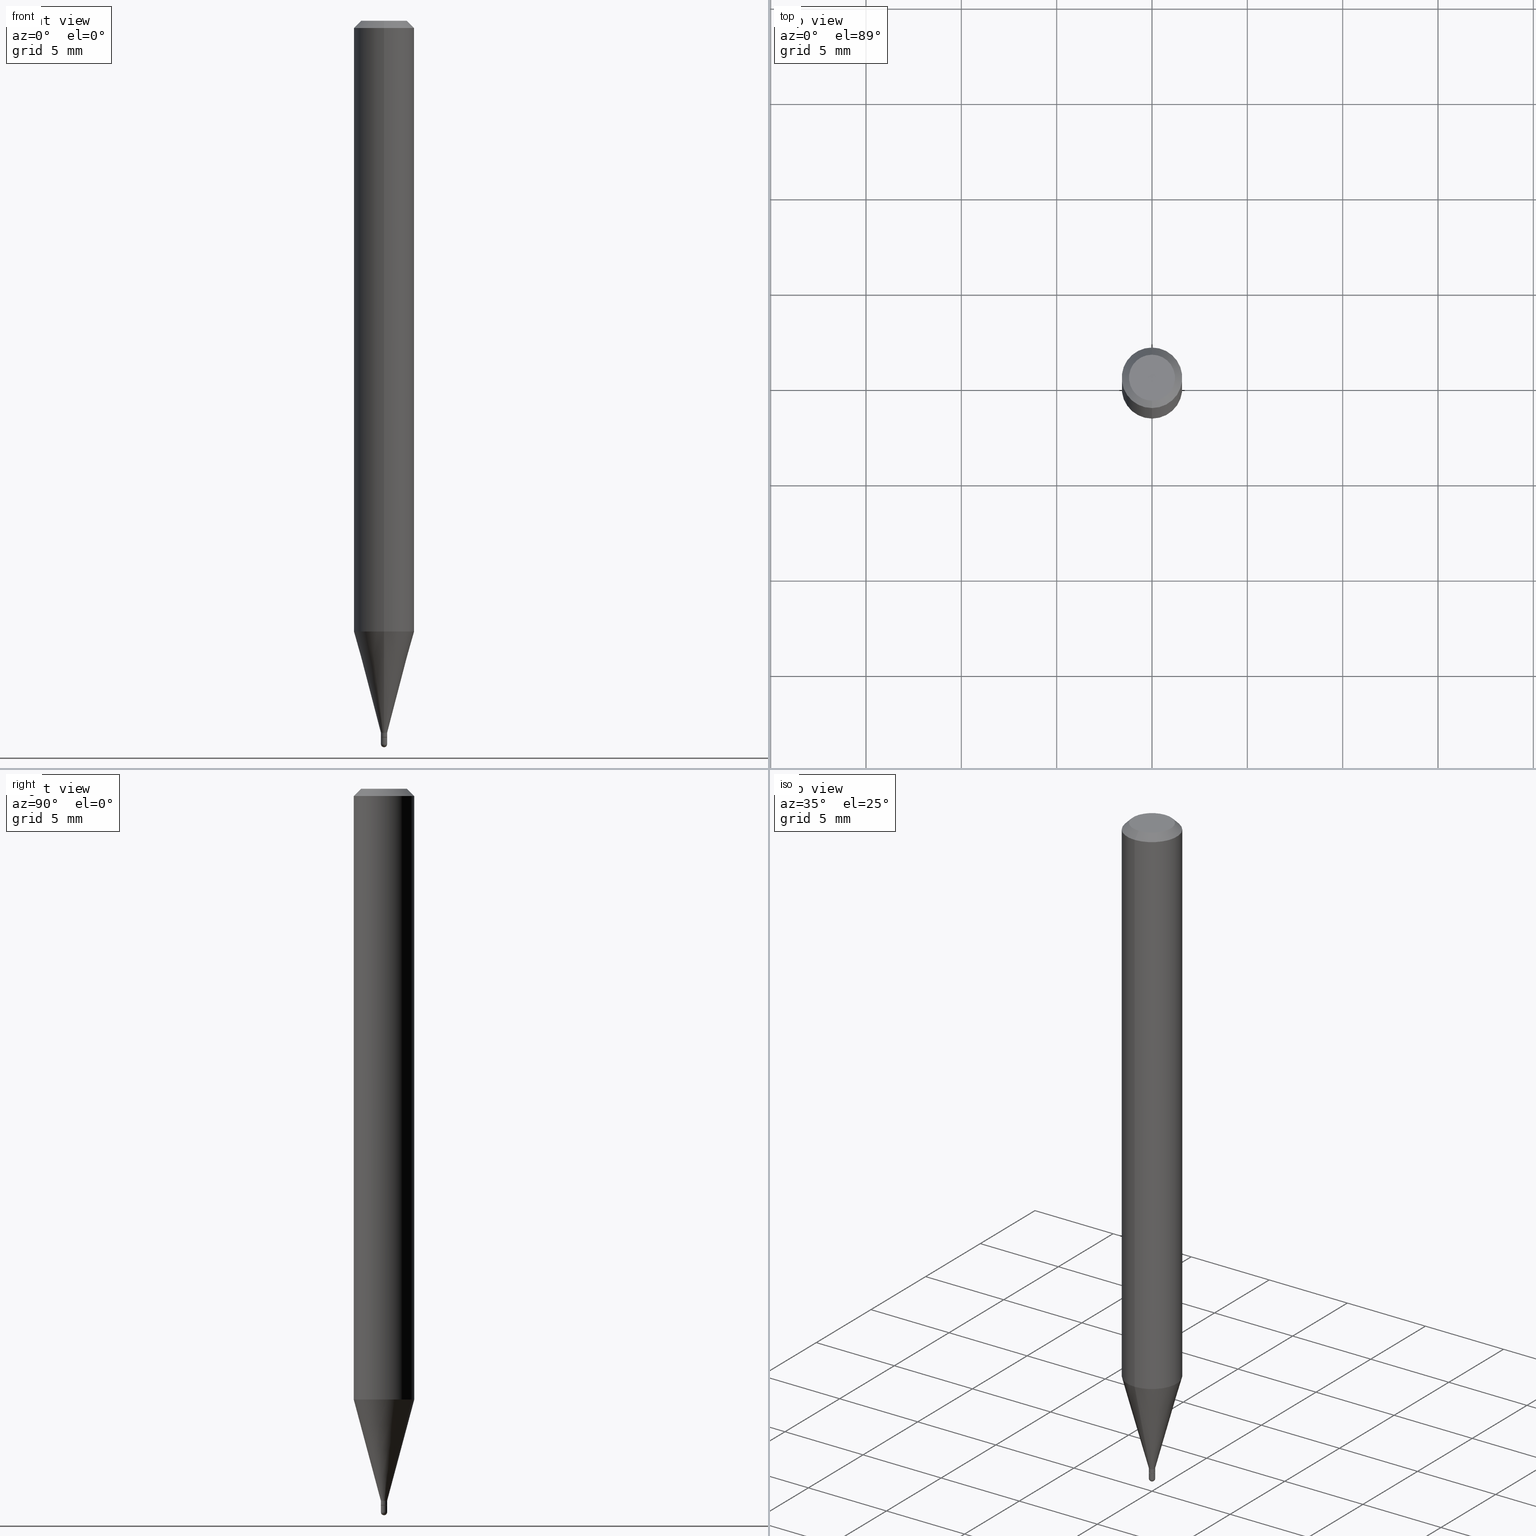
[diagram: canonical four-view strip — front | top / right | iso, engineering-drawing reading convention]
A machine part, canonical four-view strip (front | top / right | iso — engineering-drawing reading convention). The complete STEP part file that produces these views, byte-faithful:
ISO-10303-21;
HEADER;
FILE_DESCRIPTION (( 'STEP AP203' ),
    '1' );
FILE_NAME ('03037.STEP',
    '2024-03-08T18:02:21',
    ( '' ),
    ( '' ),
    'SwSTEP 2.0',
    'SolidWorks 2023',
    '' );
FILE_SCHEMA (( 'CONFIG_CONTROL_DESIGN' ));
ENDSEC;

DATA;
#1 = ORIENTED_EDGE ( 'NONE', *, *, #449, .T. ) ;
#2 = ORIENTED_EDGE ( 'NONE', *, *, #474, .T. ) ;
#3 = LINE ( 'NONE', #150, #250 ) ;
#4 = ORIENTED_EDGE ( 'NONE', *, *, #246, .T. ) ;
#5 = VECTOR ( 'NONE', #62, 39.37007874015748143 ) ;
#6 = CONICAL_SURFACE ( 'NONE', #165, 0.005999999999999998390, 0.7853981633974739252 ) ;
#7 = CARTESIAN_POINT ( 'NONE',  ( 0.006499999999999998834, -5.236349137930007031E-15, -1.493500000000000050 ) ) ;
#8 = ORIENTED_EDGE ( 'NONE', *, *, #246, .F. ) ;
#9 = VERTEX_POINT ( 'NONE', #400 ) ;
#10 = CARTESIAN_POINT ( 'NONE',  ( 4.618527782440596146E-17, 0.006499999999999923374, -2.269465356005107832E-17 ) ) ;
#11 = VERTEX_POINT ( 'NONE', #458 ) ;
#12 = ADVANCED_FACE ( 'NONE', ( #129 ), #254, .T. ) ;
#13 = PERSON_AND_ORGANIZATION_ROLE ( 'design_owner' ) ;
#14 = DIRECTION ( 'NONE',  ( 1.000000000000000000, -6.982962677686258822E-15, 0.000000000000000000 ) ) ;
#15 = CIRCLE ( 'NONE', #508, 0.005999999999999998390 ) ;
#16 = DIRECTION ( 'NONE',  ( 6.982962677686265922E-15, 1.000000000000000000, -3.483106191921935554E-15 ) ) ;
#17 = DIRECTION ( 'NONE',  ( -2.445466135731446828E-29, 3.491485163084822372E-15, 1.000000000000000000 ) ) ;
#18 = DIRECTION ( 'NONE',  ( -6.982962677686265922E-15, -1.000000000000000000, 3.483106191921935554E-15 ) ) ;
#19 = ORIENTED_EDGE ( 'NONE', *, *, #323, .F. ) ;
#20 = ORIENTED_EDGE ( 'NONE', *, *, #365, .F. ) ;
#21 = EDGE_CURVE ( 'NONE', #227, #159, #56, .T. ) ;
#22 = DIRECTION ( 'NONE',  ( -2.445466135731446828E-29, 3.491485163084822372E-15, 1.000000000000000000 ) ) ;
#23 = ADVANCED_BREP_SHAPE_REPRESENTATION ( '03037', ( #401, #223, #174 ), #154 ) ;
#24 = ADVANCED_FACE ( 'NONE', ( #325 ), #171, .T. ) ;
#25 = APPROVAL_DATE_TIME ( #276, #103 ) ;
#26 = AXIS2_PLACEMENT_3D ( 'NONE', #326, #281, #255 ) ;
#27 = DIRECTION ( 'NONE',  ( -6.982962677686266711E-15, -1.000000000000000000, 0.000000000000000000 ) ) ;
#28 = LOCAL_TIME ( 13, 2, 21.00000000000000000, #202 ) ;
#29 = FACE_OUTER_BOUND ( 'NONE', #195, .T. ) ;
#30 = CC_DESIGN_DATE_AND_TIME_ASSIGNMENT ( #316, #333, ( #85 ) ) ;
#31 = CARTESIAN_POINT ( 'NONE',  ( 3.652307662037501839E-29, -5.214527379562237841E-15, -1.493500000000000050 ) ) ;
#32 = ORIENTED_EDGE ( 'NONE', *, *, #371, .F. ) ;
#33 = LINE ( 'NONE', #380, #123 ) ;
#34 = AXIS2_PLACEMENT_3D ( 'NONE', #429, #50, #111 ) ;
#35 = EDGE_CURVE ( 'NONE', #351, #482, #55, .T. ) ;
#36 = APPROVAL_STATUS ( 'not_yet_approved' ) ;
#37 = DIRECTION ( 'NONE',  ( -2.445466135731447109E-29, 3.491485163084821978E-15, 1.000000000000000000 ) ) ;
#38 = DIRECTION ( 'NONE',  ( -6.982962677686265133E-15, -1.000000000000000000, 0.000000000000000000 ) ) ;
#39 = DIRECTION ( 'NONE',  ( -6.982962677686265922E-15, -1.000000000000000000, 4.370956789862821150E-15 ) ) ;
#40 = ORIENTED_EDGE ( 'NONE', *, *, #442, .F. ) ;
#41 = ORIENTED_EDGE ( 'NONE', *, *, #442, .T. ) ;
#42 = AXIS2_PLACEMENT_3D ( 'NONE', #340, #143, #382 ) ;
#43 = AXIS2_PLACEMENT_3D ( 'NONE', #114, #313, #310 ) ;
#44 = CARTESIAN_POINT ( 'NONE',  ( 3.651751803949534592E-29, -5.215323399981684118E-15, -1.493500000000000050 ) ) ;
#45 = DIRECTION ( 'NONE',  ( 1.000000000000000000, -6.982962677686267499E-15, 4.876176775795935793E-29 ) ) ;
#46 = ORIENTED_EDGE ( 'NONE', *, *, #432, .F. ) ;
#47 = VERTEX_POINT ( 'NONE', #58 ) ;
#48 = FACE_OUTER_BOUND ( 'NONE', #79, .T. ) ;
#49 = APPROVAL_DATE_TIME ( #156, #398 ) ;
#50 = DIRECTION ( 'NONE',  ( -2.445466135731446828E-29, 3.491485163084822372E-15, 1.000000000000000000 ) ) ;
#51 = VERTEX_POINT ( 'NONE', #317 ) ;
#52 = ORIENTED_EDGE ( 'NONE', *, *, #35, .T. ) ;
#53 = EDGE_CURVE ( 'NONE', #440, #47, #484, .T. ) ;
#54 = ADVANCED_FACE ( 'NONE', ( #125 ), #91, .T. ) ;
#55 = LINE ( 'NONE', #411, #5 ) ;
#56 = CIRCLE ( 'NONE', #278, 0.06250000000000000000 ) ;
#57 = CALENDAR_DATE ( 2024, 8, 3 ) ;
#58 = CARTESIAN_POINT ( 'NONE',  ( -4.538925740492416104E-17, -0.006500000000005109330, -1.479500000000000259 ) ) ;
#59 = FACE_OUTER_BOUND ( 'NONE', #445, .T. ) ;
#60 = ORIENTED_EDGE ( 'NONE', *, *, #168, .T. ) ;
#61 = DIRECTION ( 'NONE',  ( -2.445466135731446828E-29, 3.491485163084822372E-15, 1.000000000000000000 ) ) ;
#62 = DIRECTION ( 'NONE',  ( -2.445468806185136877E-29, 3.491481338843145188E-15, 1.000000000000000000 ) ) ;
#63 = APPROVAL_DATE_TIME ( #300, #235 ) ;
#64 = AXIS2_PLACEMENT_3D ( 'NONE', #106, #110, #38 ) ;
#65 = LINE ( 'NONE', #342, #179 ) ;
#66 = CALENDAR_DATE ( 2024, 8, 3 ) ;
#67 = DIRECTION ( 'NONE',  ( 5.024295867788190974E-15, 0.7071067811865681119, 0.7071067811865270336 ) ) ;
#68 = CARTESIAN_POINT ( 'NONE',  ( -0.006499999999999998834, 4.618527782440650380E-17, -3.197307808665688464E-31 ) ) ;
#69 = EDGE_LOOP ( 'NONE', ( #436, #390 ) ) ;
#70 = DIRECTION ( 'NONE',  ( -6.982962677686265133E-15, -1.000000000000000000, 0.000000000000000000 ) ) ;
#71 = VECTOR ( 'NONE', #221, 39.37007874015749564 ) ;
#72 = ORIENTED_EDGE ( 'NONE', *, *, #341, .T. ) ;
#73 = PERSON_AND_ORGANIZATION_ROLE ( 'creator' ) ;
#74 = DIRECTION ( 'NONE',  ( -6.982962677686266711E-15, -1.000000000000000000, 3.491485163084823161E-15 ) ) ;
#75 = SHAPE_DEFINITION_REPRESENTATION ( #160, #23 ) ;
#76 = DIRECTION ( 'NONE',  ( -2.445466135731447109E-29, 3.491485163084821978E-15, 1.000000000000000000 ) ) ;
#77 = DIRECTION ( 'NONE',  ( -4.851104656540964275E-15, -0.7071067811865500152, -0.7071067811865450192 ) ) ;
#78 = EDGE_LOOP ( 'NONE', ( #20, #315, #60, #194 ) ) ;
#79 = EDGE_LOOP ( 'NONE', ( #8, #2, #397, #52, #384 ) ) ;
#80 = LINE ( 'NONE', #239, #386 ) ;
#81 = EDGE_LOOP ( 'NONE', ( #189, #192, #41, #177 ) ) ;
#82 = PLANE ( 'NONE',  #344 ) ;
#83 = VERTEX_POINT ( 'NONE', #133 ) ;
#84 = CARTESIAN_POINT ( 'NONE',  ( -3.773273898774340269E-16, -0.04749999999999999362, 4.053343695858956261E-16 ) ) ;
#85 = PRODUCT_DEFINITION ( 'UNKNOWN', '', #257, #501 ) ;
#86 = CIRCLE ( 'NONE', #163, 0.005999999999999998390 ) ;
#87 = ADVANCED_FACE ( 'NONE', ( #357 ), #453, .F. ) ;
#88 = DIRECTION ( 'NONE',  ( -2.445468806185136597E-29, 3.491481338843145583E-15, 1.000000000000000000 ) ) ;
#89 = DIRECTION ( 'NONE',  ( 1.000000000000000000, 0.000000000000000000, 0.000000000000000000 ) ) ;
#90 = DIRECTION ( 'NONE',  ( -6.982962677686265133E-15, -1.000000000000000000, 0.000000000000000000 ) ) ;
#91 = CONICAL_SURFACE ( 'NONE', #241, 0.005999999999999998390, 0.7853981633974739252 ) ;
#92 = ORIENTED_EDGE ( 'NONE', *, *, #489, .F. ) ;
#93 = FACE_OUTER_BOUND ( 'NONE', #81, .T. ) ;
#94 = CARTESIAN_POINT ( 'NONE',  ( 3.619289880882541127E-29, -5.167398041365536243E-15, -1.479999999999999982 ) ) ;
#95 = ADVANCED_FACE ( 'NONE', ( #127 ), #215, .T. ) ;
#96 = SECURITY_CLASSIFICATION_LEVEL ( 'unclassified' ) ;
#97 = DIRECTION ( 'NONE',  ( -2.445466135731446828E-29, 3.491485163084822372E-15, 1.000000000000000000 ) ) ;
#98 = CIRCLE ( 'NONE', #164, 0.006499999999999922506 ) ;
#99 = CARTESIAN_POINT ( 'NONE',  ( -4.364351673553608545E-16, -0.06250000000000439926, -1.261005154776142723 ) ) ;
#100 = CC_DESIGN_APPROVAL ( #235, ( #257 ) ) ;
#101 = ADVANCED_FACE ( 'NONE', ( #493 ), #134, .T. ) ;
#102 = DIRECTION ( 'NONE',  ( -2.445466135731447109E-29, 3.491485163084821978E-15, 1.000000000000000000 ) ) ;
#103 = APPROVAL ( #253, 'UNSPECIFIED' ) ;
#104 = DIRECTION ( 'NONE',  ( -2.445466135731446828E-29, 3.491485163084822372E-15, 1.000000000000000000 ) ) ;
#105 = ORIENTED_EDGE ( 'NONE', *, *, #381, .F. ) ;
#106 = CARTESIAN_POINT ( 'NONE',  ( 3.618067147814676127E-29, -5.165652298783995580E-15, -1.479500000000000259 ) ) ;
#107 = EDGE_CURVE ( 'NONE', #279, #11, #311, .T. ) ;
#108 = VECTOR ( 'NONE', #478, 39.37007874015748143 ) ;
#109 = ORIENTED_EDGE ( 'NONE', *, *, #275, .F. ) ;
#110 = DIRECTION ( 'NONE',  ( -2.445466135731446828E-29, 3.491485163084822372E-15, 1.000000000000000000 ) ) ;
#111 = DIRECTION ( 'NONE',  ( -6.982962677686265922E-15, -1.000000000000000000, 3.483106191921935554E-15 ) ) ;
#112 = EDGE_CURVE ( 'NONE', #393, #227, #301, .T. ) ;
#113 = CALENDAR_DATE ( 2024, 8, 3 ) ;
#114 = CARTESIAN_POINT ( 'NONE',  ( 3.651751803949534592E-29, -5.215323399981684118E-15, -1.493500000000000050 ) ) ;
#115 = CIRCLE ( 'NONE', #64, 0.006499999999999923374 ) ;
#116 = ORIENTED_EDGE ( 'NONE', *, *, #275, .T. ) ;
#117 = CC_DESIGN_SECURITY_CLASSIFICATION ( #387, ( #257 ) ) ;
#118 = DIRECTION ( 'NONE',  ( -6.982962677686265922E-15, -1.000000000000000000, 3.491485163084821978E-15 ) ) ;
#119 = FACE_OUTER_BOUND ( 'NONE', #308, .T. ) ;
#120 = ORIENTED_EDGE ( 'NONE', *, *, #335, .F. ) ;
#121 = CARTESIAN_POINT ( 'NONE',  ( 3.840629472727447874E-16, 0.04749999999999999362, 7.364327909283752044E-17 ) ) ;
#122 = EDGE_LOOP ( 'NONE', ( #32, #448, #46, #211 ) ) ;
#123 = VECTOR ( 'NONE', #37, 39.37007874015748143 ) ;
#124 = AXIS2_PLACEMENT_3D ( 'NONE', #128, #88, #161 ) ;
#125 = FACE_OUTER_BOUND ( 'NONE', #451, .T. ) ;
#126 = EDGE_CURVE ( 'NONE', #348, #393, #98, .T. ) ;
#127 = FACE_OUTER_BOUND ( 'NONE', #122, .T. ) ;
#128 = CARTESIAN_POINT ( 'NONE',  ( 3.652307662037501839E-29, -5.214527379562237841E-15, -1.493500000000000050 ) ) ;
#129 = FACE_OUTER_BOUND ( 'NONE', #404, .T. ) ;
#130 = CONICAL_SURFACE ( 'NONE', #144, 0.06250000000000000000, 0.7853981633974483900 ) ;
#131 = EDGE_CURVE ( 'NONE', #234, #9, #86, .T. ) ;
#132 = PERSON_AND_ORGANIZATION ( #410, #405 ) ;
#133 = CARTESIAN_POINT ( 'NONE',  ( 4.440892098500935790E-16, 0.06249999999999995143, -0.01499999999999997863 ) ) ;
#134 = CYLINDRICAL_SURFACE ( 'NONE', #302, 0.06250000000000000000 ) ;
#135 = DIRECTION ( 'NONE',  ( -2.445468806185136877E-29, 3.491481338843145188E-15, 1.000000000000000000 ) ) ;
#136 = ADVANCED_FACE ( 'NONE', ( #176 ), #130, .T. ) ;
#137 = PERSON_AND_ORGANIZATION ( #410, #405 ) ;
#138 = CARTESIAN_POINT ( 'NONE',  ( 0.000000000000000000, 0.000000000000000000, 0.000000000000000000 ) ) ;
#139 = PRODUCT_RELATED_PRODUCT_CATEGORY ( 'detail', '', ( #406 ) ) ;
#140 = CARTESIAN_POINT ( 'NONE',  ( 4.440892098500932831E-16, 0.06249999999999557992, -1.261005154776143389 ) ) ;
#141 = FACE_OUTER_BOUND ( 'NONE', #78, .T. ) ;
#142 = ORIENTED_EDGE ( 'NONE', *, *, #35, .F. ) ;
#143 = DIRECTION ( 'NONE',  ( -2.445466135731446828E-29, 3.491485163084822372E-15, 1.000000000000000000 ) ) ;
#144 = AXIS2_PLACEMENT_3D ( 'NONE', #506, #422, #218 ) ;
#145 = APPROVAL_PERSON_ORGANIZATION ( #137, #398, #267 ) ;
#146 = DIRECTION ( 'NONE',  ( -2.445468806185136597E-29, 3.491481338843145583E-15, 1.000000000000000000 ) ) ;
#147 = ORIENTED_EDGE ( 'NONE', *, *, #112, .F. ) ;
#148 = DIRECTION ( 'NONE',  ( -2.445468806185136597E-29, 3.491481338843145583E-15, 1.000000000000000000 ) ) ;
#149 = ORIENTED_EDGE ( 'NONE', *, *, #328, .F. ) ;
#150 = CARTESIAN_POINT ( 'NONE',  ( 4.440892098500625669E-16, 0.06250000000000000000, -2.182178226928013983E-16 ) ) ;
#151 = ORIENTED_EDGE ( 'NONE', *, *, #449, .F. ) ;
#152 = AXIS2_PLACEMENT_3D ( 'NONE', #270, #354, #39 ) ;
#153 = ORIENTED_EDGE ( 'NONE', *, *, #191, .F. ) ;
#154 =( GEOMETRIC_REPRESENTATION_CONTEXT ( 3 ) GLOBAL_UNCERTAINTY_ASSIGNED_CONTEXT ( ( #379 ) ) GLOBAL_UNIT_ASSIGNED_CONTEXT ( ( #450, #321, #244 ) ) REPRESENTATION_CONTEXT ( 'NONE', 'WORKASPACE' ) );
#155 = EDGE_CURVE ( 'NONE', #234, #440, #418, .T. ) ;
#156 = DATE_AND_TIME ( #113, #463 ) ;
#157 = CARTESIAN_POINT ( 'NONE',  ( 3.619293833154002365E-29, -5.167392381487854879E-15, -1.479999999999999982 ) ) ;
#158 = CYLINDRICAL_SURFACE ( 'NONE', #503, 0.006499999999999998834 ) ;
#159 = VERTEX_POINT ( 'NONE', #140 ) ;
#160 = PRODUCT_DEFINITION_SHAPE ( 'NONE', 'NONE',  #85 ) ;
#161 = DIRECTION ( 'NONE',  ( 1.000000000000000000, -6.982962677686258822E-15, 0.000000000000000000 ) ) ;
#162 = ORIENTED_EDGE ( 'NONE', *, *, #261, .F. ) ;
#163 = AXIS2_PLACEMENT_3D ( 'NONE', #372, #460, #338 ) ;
#164 = AXIS2_PLACEMENT_3D ( 'NONE', #505, #104, #70 ) ;
#165 = AXIS2_PLACEMENT_3D ( 'NONE', #329, #361, #409 ) ;
#166 = CARTESIAN_POINT ( 'NONE',  ( 3.652307662037501839E-29, -5.214527379562237841E-15, -1.493500000000000050 ) ) ;
#167 = ORIENTED_EDGE ( 'NONE', *, *, #335, .T. ) ;
#168 = EDGE_CURVE ( 'NONE', #47, #393, #303, .T. ) ;
#169 = DIRECTION ( 'NONE',  ( 0.000000000000000000, 0.000000000000000000, 1.000000000000000000 ) ) ;
#170 = DIRECTION ( 'NONE',  ( -2.445466135731446828E-29, 3.491485163084822372E-15, 1.000000000000000000 ) ) ;
#171 = CONICAL_SURFACE ( 'NONE', #414, 0.006499999999999922506, 0.2617993877991501295 ) ;
#172 = EDGE_CURVE ( 'NONE', #51, #351, #368, .T. ) ;
#173 = DIRECTION ( 'NONE',  ( -2.445466135731447109E-29, 3.491485163084821978E-15, 1.000000000000000000 ) ) ;
#174 = AXIS2_PLACEMENT_3D ( 'NONE', #207, #169, #89 ) ;
#175 = CARTESIAN_POINT ( 'NONE',  ( 3.651751803949534592E-29, -5.215323399981684118E-15, -1.493500000000000050 ) ) ;
#176 = FACE_OUTER_BOUND ( 'NONE', #297, .T. ) ;
#177 = ORIENTED_EDGE ( 'NONE', *, *, #53, .F. ) ;
#178 = DIRECTION ( 'NONE',  ( 1.000000000000000000, -6.982962677686258822E-15, 0.000000000000000000 ) ) ;
#179 = VECTOR ( 'NONE', #370, 39.37007874015747433 ) ;
#180 = CIRCLE ( 'NONE', #43, 0.006499999999999890414 ) ;
#181 = DIRECTION ( 'NONE',  ( 1.000000000000000000, -6.982962677686258822E-15, 0.000000000000000000 ) ) ;
#182 = APPROVAL_ROLE ( '' ) ;
#183 = CARTESIAN_POINT ( 'NONE',  ( 3.619289880882541127E-29, -5.167398041365536243E-15, -1.479999999999999982 ) ) ;
#184 = EDGE_CURVE ( 'NONE', #332, #437, #263, .T. ) ;
#185 = DIRECTION ( 'NONE',  ( -2.445468806185136597E-29, 3.491481338843145583E-15, 1.000000000000000000 ) ) ;
#186 = CARTESIAN_POINT ( 'NONE',  ( 2.451372438372677661E-16, 0.006499999999994789460, -1.469999999999999973 ) ) ;
#187 = VECTOR ( 'NONE', #77, 39.37007874015748143 ) ;
#188 = LOCAL_TIME ( 13, 2, 21.00000000000000000, #339 ) ;
#189 = ORIENTED_EDGE ( 'NONE', *, *, #155, .F. ) ;
#190 = DIRECTION ( 'NONE',  ( 7.105427357601001070E-15, 1.000000000000000000, 0.000000000000000000 ) ) ;
#191 = EDGE_CURVE ( 'NONE', #482, #356, #271, .T. ) ;
#192 = ORIENTED_EDGE ( 'NONE', *, *, #131, .T. ) ;
#193 = LINE ( 'NONE', #349, #108 ) ;
#194 = ORIENTED_EDGE ( 'NONE', *, *, #126, .F. ) ;
#195 = EDGE_LOOP ( 'NONE', ( #375, #4, #153, #142, #240 ) ) ;
#196 = LINE ( 'NONE', #228, #187 ) ;
#197 = ORIENTED_EDGE ( 'NONE', *, *, #126, .T. ) ;
#198 = AXIS2_PLACEMENT_3D ( 'NONE', #31, #185, #181 ) ;
#199 = AXIS2_PLACEMENT_3D ( 'NONE', #388, #389, #392 ) ;
#200 = CARTESIAN_POINT ( 'NONE',  ( -4.538925740492423500E-17, -0.006500000000005055553, -1.469999999999999973 ) ) ;
#201 = EDGE_LOOP ( 'NONE', ( #162, #237 ) ) ;
#202 = COORDINATED_UNIVERSAL_TIME_OFFSET ( 5, 0, .BEHIND. ) ;
#203 = DIRECTION ( 'NONE',  ( -2.445468806185136597E-29, 3.491481338843145583E-15, 1.000000000000000000 ) ) ;
#204 = APPROVAL_ROLE ( '' ) ;
#205 = DIRECTION ( 'NONE',  ( -2.445466135731446828E-29, 3.491485163084822372E-15, 1.000000000000000000 ) ) ;
#206 = AXIS2_PLACEMENT_3D ( 'NONE', #284, #61, #18 ) ;
#207 = CARTESIAN_POINT ( 'NONE',  ( 0.000000000000000000, 0.000000000000000000, 0.000000000000000000 ) ) ;
#208 = ORIENTED_EDGE ( 'NONE', *, *, #350, .F. ) ;
#209 = ADVANCED_FACE ( 'NONE', ( #334 ), #222, .F. ) ;
#210 = CARTESIAN_POINT ( 'NONE',  ( 3.594835219525226569E-29, -5.132483189734688276E-15, -1.469999999999999973 ) ) ;
#211 = ORIENTED_EDGE ( 'NONE', *, *, #172, .F. ) ;
#212 = CC_DESIGN_PERSON_AND_ORGANIZATION_ASSIGNMENT ( #132, #13, ( #406 ) ) ;
#213 = APPLICATION_CONTEXT ( 'configuration controlled 3d designs of mechanical parts and assemblies' ) ;
#214 = CARTESIAN_POINT ( 'NONE',  ( 3.667369422145754585E-29, -5.238416038893887198E-15, -1.499999999999999778 ) ) ;
#215 = SPHERICAL_SURFACE ( 'NONE', #286, 0.006499999999999890414 ) ;
#216 = VECTOR ( 'NONE', #135, 39.37007874015748143 ) ;
#217 = VECTOR ( 'NONE', #76, 39.37007874015748143 ) ;
#218 = DIRECTION ( 'NONE',  ( 6.982962677686265922E-15, 1.000000000000000000, -3.483106191921935554E-15 ) ) ;
#219 = ADVANCED_FACE ( 'NONE', ( #141 ), #502, .T. ) ;
#220 = DATE_AND_TIME ( #66, #470 ) ;
#221 = DIRECTION ( 'NONE',  ( -1.807323732225328562E-15, -0.2588190451025179639, 0.9659258262890689783 ) ) ;
#222 = PLANE ( 'NONE',  #377 ) ;
#223 = MANIFOLD_SOLID_BREP ( 'Body-Move/Copy2[2]', #395 ) ;
#224 = AXIS2_PLACEMENT_3D ( 'NONE', #283, #22, #322 ) ;
#225 = DIRECTION ( 'NONE',  ( -2.445468806185136597E-29, 3.491481338843145583E-15, 1.000000000000000000 ) ) ;
#226 = DIRECTION ( 'NONE',  ( 2.438088387897960049E-29, -3.491481338843145188E-15, -1.000000000000000000 ) ) ;
#227 = VERTEX_POINT ( 'NONE', #99 ) ;
#228 = CARTESIAN_POINT ( 'NONE',  ( -4.287811248607203282E-16, -0.06250000000000005551, -0.01499999999999954321 ) ) ;
#229 = ADVANCED_FACE ( 'NONE', ( #29 ), #464, .T. ) ;
#230 = DIRECTION ( 'NONE',  ( -2.445466135731446548E-29, 3.491485163084821978E-15, 1.000000000000000000 ) ) ;
#231 = AXIS2_PLACEMENT_3D ( 'NONE', #507, #258, #74 ) ;
#232 = AXIS2_PLACEMENT_3D ( 'NONE', #475, #268, #509 ) ;
#233 = CC_DESIGN_APPROVAL ( #398, ( #387 ) ) ;
#234 = VERTEX_POINT ( 'NONE', #466 ) ;
#235 = APPROVAL ( #36, 'UNSPECIFIED' ) ;
#236 = DIRECTION ( 'NONE',  ( -2.445466135731446828E-29, 3.491485163084822372E-15, 1.000000000000000000 ) ) ;
#237 = ORIENTED_EDGE ( 'NONE', *, *, #131, .F. ) ;
#238 = CARTESIAN_POINT ( 'NONE',  ( 3.619289880882541127E-29, -5.167398041365536243E-15, -1.479999999999999982 ) ) ;
#239 = CARTESIAN_POINT ( 'NONE',  ( 4.364351673553919652E-16, 0.06249999999999995143, -0.01499999999999997863 ) ) ;
#240 = ORIENTED_EDGE ( 'NONE', *, *, #432, .T. ) ;
#241 = AXIS2_PLACEMENT_3D ( 'NONE', #94, #170, #27 ) ;
#242 = CONICAL_SURFACE ( 'NONE', #485, 0.06250000000000000000, 0.7853981633974483900 ) ;
#243 = PERSON_AND_ORGANIZATION_ROLE ( 'creator' ) ;
#244 =( NAMED_UNIT ( * ) SI_UNIT ( $, .STERADIAN. ) SOLID_ANGLE_UNIT ( ) );
#245 = DIRECTION ( 'NONE',  ( -6.982962677686266711E-15, -1.000000000000000000, 0.000000000000000000 ) ) ;
#246 = EDGE_CURVE ( 'NONE', #11, #356, #420, .T. ) ;
#247 =( LENGTH_UNIT ( ) NAMED_UNIT ( * ) SI_UNIT ( $, .METRE. ) );
#248 = DIRECTION ( 'NONE',  ( -2.445466135731446828E-29, 3.491485163084822372E-15, 1.000000000000000000 ) ) ;
#249 = CIRCLE ( 'NONE', #34, 0.06250000000000000000 ) ;
#250 = VECTOR ( 'NONE', #173, 39.37007874015748143 ) ;
#251 = EDGE_CURVE ( 'NONE', #227, #465, #33, .T. ) ;
#252 = EDGE_LOOP ( 'NONE', ( #151, #504, #330, #347 ) ) ;
#253 = APPROVAL_STATUS ( 'not_yet_approved' ) ;
#254 = CYLINDRICAL_SURFACE ( 'NONE', #224, 0.006499999999999923374 ) ;
#255 = DIRECTION ( 'NONE',  ( 6.982962677686265922E-15, 1.000000000000000000, -3.491485163084821978E-15 ) ) ;
#256 = CIRCLE ( 'NONE', #152, 0.06250000000000000000 ) ;
#257 = PRODUCT_DEFINITION_FORMATION_WITH_SPECIFIED_SOURCE ( 'ANY', '', #406, .NOT_KNOWN. ) ;
#258 = DIRECTION ( 'NONE',  ( -2.445466135731446828E-29, 3.491485163084822372E-15, 1.000000000000000000 ) ) ;
#259 = DIRECTION ( 'NONE',  ( -2.445468806185136597E-29, 3.491481338843145583E-15, 1.000000000000000000 ) ) ;
#260 = ORIENTED_EDGE ( 'NONE', *, *, #107, .F. ) ;
#261 = EDGE_CURVE ( 'NONE', #9, #234, #15, .T. ) ;
#262 = CARTESIAN_POINT ( 'NONE',  ( 3.619293833154002365E-29, -5.167392381487854879E-15, -1.479999999999999982 ) ) ;
#263 = CIRCLE ( 'NONE', #231, 0.04749999999999999362 ) ;
#264 = CONICAL_SURFACE ( 'NONE', #434, 0.006499999999999922506, 0.2617993877991501295 ) ;
#265 = CARTESIAN_POINT ( 'NONE',  ( 4.263256414564218254E-17, 0.005999999999994831516, -1.479999999999999982 ) ) ;
#266 = CARTESIAN_POINT ( 'NONE',  ( 4.618527782444263733E-17, 0.006499999999994729612, -1.493500000000000050 ) ) ;
#267 = APPROVAL_ROLE ( '' ) ;
#268 = DIRECTION ( 'NONE',  ( -2.445466135731446828E-29, 3.491485163084822372E-15, 1.000000000000000000 ) ) ;
#269 = ORIENTED_EDGE ( 'NONE', *, *, #371, .T. ) ;
#270 = CARTESIAN_POINT ( 'NONE',  ( 3.083745402987849892E-29, -4.402780788474383222E-15, -1.261005154776143167 ) ) ;
#271 = CIRCLE ( 'NONE', #336, 0.006499999999999998834 ) ;
#272 = ORIENTED_EDGE ( 'NONE', *, *, #168, .F. ) ;
#273 = DIRECTION ( 'NONE',  ( 1.000000000000000000, -6.982962677686266711E-15, 4.883557194083113462E-29 ) ) ;
#274 = CARTESIAN_POINT ( 'NONE',  ( 3.652307662037501839E-29, -5.214527379562237841E-15, -1.493500000000000050 ) ) ;
#275 = EDGE_CURVE ( 'NONE', #47, #440, #115, .T. ) ;
#276 = DATE_AND_TIME ( #402, #337 ) ;
#277 = ORIENTED_EDGE ( 'NONE', *, *, #184, .F. ) ;
#278 = AXIS2_PLACEMENT_3D ( 'NONE', #488, #205, #496 ) ;
#279 = VERTEX_POINT ( 'NONE', #266 ) ;
#280 = CIRCLE ( 'NONE', #232, 0.04749999999999999362 ) ;
#281 = DIRECTION ( 'NONE',  ( 2.445466135731446548E-29, -3.491485163084821978E-15, -1.000000000000000000 ) ) ;
#282 = FACE_OUTER_BOUND ( 'NONE', #304, .T. ) ;
#283 = CARTESIAN_POINT ( 'NONE',  ( 0.000000000000000000, 0.000000000000000000, 0.000000000000000000 ) ) ;
#284 = CARTESIAN_POINT ( 'NONE',  ( 3.668199203597111441E-31, -5.237227744627150111E-17, -0.01499999999999976179 ) ) ;
#285 = ORIENTED_EDGE ( 'NONE', *, *, #381, .T. ) ;
#286 = AXIS2_PLACEMENT_3D ( 'NONE', #175, #289, #245 ) ;
#287 = AXIS2_PLACEMENT_3D ( 'NONE', #473, #236, #314 ) ;
#288 = APPLICATION_PROTOCOL_DEFINITION ( 'international standard', 'config_control_design', 1994, #467 ) ;
#289 = DIRECTION ( 'NONE',  ( 1.000000000000000000, -6.982962677686266711E-15, 4.883557194083113462E-29 ) ) ;
#290 = CARTESIAN_POINT ( 'NONE',  ( 0.000000000000000000, 0.000000000000000000, 0.000000000000000000 ) ) ;
#291 = PERSON_AND_ORGANIZATION ( #410, #405 ) ;
#292 = CC_DESIGN_PERSON_AND_ORGANIZATION_ASSIGNMENT ( #419, #497, ( #257 ) ) ;
#293 = EDGE_CURVE ( 'NONE', #348, #159, #65, .T. ) ;
#294 = AXIS2_PLACEMENT_3D ( 'NONE', #166, #203, #14 ) ;
#295 = CIRCLE ( 'NONE', #206, 0.06250000000000000000 ) ;
#296 = CARTESIAN_POINT ( 'NONE',  ( 4.538925740499691497E-17, 0.006499999999994831960, -1.479999999999999982 ) ) ;
#297 = EDGE_LOOP ( 'NONE', ( #499, #208, #167, #72 ) ) ;
#298 = ADVANCED_FACE ( 'NONE', ( #498 ), #352, .T. ) ;
#299 = DIRECTION ( 'NONE',  ( -1.000000000000000000, 6.982962677686265922E-15, -4.876176775795935793E-29 ) ) ;
#300 = DATE_AND_TIME ( #417, #188 ) ;
#301 = LINE ( 'NONE', #331, #71 ) ;
#302 = AXIS2_PLACEMENT_3D ( 'NONE', #290, #97, #413 ) ;
#303 = LINE ( 'NONE', #424, #461 ) ;
#304 = EDGE_LOOP ( 'NONE', ( #277, #376, #430, #120 ) ) ;
#305 = CYLINDRICAL_SURFACE ( 'NONE', #287, 0.06250000000000000000 ) ;
#306 = ORIENTED_EDGE ( 'NONE', *, *, #293, .T. ) ;
#307 = DIRECTION ( 'NONE',  ( 1.000000000000000000, -7.105427357601001070E-15, 4.926315508542082329E-29 ) ) ;
#308 = EDGE_LOOP ( 'NONE', ( #443, #1, #92, #355 ) ) ;
#309 = ORIENTED_EDGE ( 'NONE', *, *, #293, .F. ) ;
#310 = DIRECTION ( 'NONE',  ( -6.982962677686266711E-15, -1.000000000000000000, 0.000000000000000000 ) ) ;
#311 = CIRCLE ( 'NONE', #294, 0.006499999999999998834 ) ;
#312 = ORIENTED_EDGE ( 'NONE', *, *, #21, .F. ) ;
#313 = DIRECTION ( 'NONE',  ( -1.000000000000000000, 6.982962677686265922E-15, -4.883557194083112340E-29 ) ) ;
#314 = DIRECTION ( 'NONE',  ( -6.982962677686265922E-15, -1.000000000000000000, 3.491485163084822372E-15 ) ) ;
#315 = ORIENTED_EDGE ( 'NONE', *, *, #53, .T. ) ;
#316 = DATE_AND_TIME ( #57, #28 ) ;
#317 = CARTESIAN_POINT ( 'NONE',  ( -4.538925740492382824E-17, -0.006500000000005159637, -1.493500000000000050 ) ) ;
#318 = EDGE_CURVE ( 'NONE', #332, #465, #196, .T. ) ;
#319 = CIRCLE ( 'NONE', #476, 0.006499999999999890414 ) ;
#320 = CIRCLE ( 'NONE', #199, 0.006499999999999922506 ) ;
#321 =( NAMED_UNIT ( * ) PLANE_ANGLE_UNIT ( ) SI_UNIT ( $, .RADIAN. ) );
#322 = DIRECTION ( 'NONE',  ( -6.982962677686265133E-15, -1.000000000000000000, 3.491485163084822372E-15 ) ) ;
#323 = EDGE_CURVE ( 'NONE', #159, #227, #256, .T. ) ;
#324 = CARTESIAN_POINT ( 'NONE',  ( 3.668199203597111441E-31, -5.237227744627150111E-17, -0.01499999999999976179 ) ) ;
#325 = FACE_OUTER_BOUND ( 'NONE', #511, .T. ) ;
#326 = CARTESIAN_POINT ( 'NONE',  ( 3.316907271900976096E-16, 0.04749999999999999362, -4.610113307684576619E-17 ) ) ;
#327 = AXIS2_PLACEMENT_3D ( 'NONE', #157, #146, #435 ) ;
#328 = EDGE_CURVE ( 'NONE', #457, #279, #319, .T. ) ;
#329 = CARTESIAN_POINT ( 'NONE',  ( 3.619289880882541127E-29, -5.167398041365536243E-15, -1.479999999999999982 ) ) ;
#330 = ORIENTED_EDGE ( 'NONE', *, *, #251, .T. ) ;
#331 = CARTESIAN_POINT ( 'NONE',  ( -4.538925740492423500E-17, -0.006500000000005055553, -1.469999999999999973 ) ) ;
#332 = VERTEX_POINT ( 'NONE', #84 ) ;
#333 = DATE_TIME_ROLE ( 'creation_date' ) ;
#334 = FACE_OUTER_BOUND ( 'NONE', #362, .T. ) ;
#335 = EDGE_CURVE ( 'NONE', #437, #83, #80, .T. ) ;
#336 = AXIS2_PLACEMENT_3D ( 'NONE', #262, #225, #178 ) ;
#337 = LOCAL_TIME ( 13, 2, 21.00000000000000000, #366 ) ;
#338 = DIRECTION ( 'NONE',  ( -6.982962677686266711E-15, -1.000000000000000000, 0.000000000000000000 ) ) ;
#339 = COORDINATED_UNIVERSAL_TIME_OFFSET ( 5, 0, .BEHIND. ) ;
#340 = CARTESIAN_POINT ( 'NONE',  ( 0.000000000000000000, 0.000000000000000000, 0.000000000000000000 ) ) ;
#341 = EDGE_CURVE ( 'NONE', #83, #465, #249, .T. ) ;
#342 = CARTESIAN_POINT ( 'NONE',  ( 4.618527782444190393E-17, 0.006499999999994789460, -1.469999999999999973 ) ) ;
#343 = AXIS2_PLACEMENT_3D ( 'NONE', #44, #273, #426 ) ;
#344 = AXIS2_PLACEMENT_3D ( 'NONE', #238, #230, #118 ) ;
#345 = DIRECTION ( 'NONE',  ( 4.937700262164548042E-15, 0.7071067811865451302, -0.7071067811865499042 ) ) ;
#346 = LINE ( 'NONE', #10, #217 ) ;
#347 = ORIENTED_EDGE ( 'NONE', *, *, #341, .F. ) ;
#348 = VERTEX_POINT ( 'NONE', #186 ) ;
#349 = CARTESIAN_POINT ( 'NONE',  ( -4.189777606608139426E-17, -0.006000000000005166131, -1.479999999999999982 ) ) ;
#350 = EDGE_CURVE ( 'NONE', #437, #332, #280, .T. ) ;
#351 = VERTEX_POINT ( 'NONE', #7 ) ;
#352 = SPHERICAL_SURFACE ( 'NONE', #343, 0.006499999999999890414 ) ;
#353 = CLOSED_SHELL ( 'NONE', ( #229, #95, #209, #298, #385 ) ) ;
#354 = DIRECTION ( 'NONE',  ( -2.445466135731446828E-29, 3.491485163084822372E-15, 1.000000000000000000 ) ) ;
#355 = ORIENTED_EDGE ( 'NONE', *, *, #251, .F. ) ;
#356 = VERTEX_POINT ( 'NONE', #439 ) ;
#357 = FACE_OUTER_BOUND ( 'NONE', #69, .T. ) ;
#358 = APPLICATION_PROTOCOL_DEFINITION ( 'international standard', 'config_control_design', 1994, #213 ) ;
#359 = CC_DESIGN_PERSON_AND_ORGANIZATION_ASSIGNMENT ( #412, #369, ( #387 ) ) ;
#360 = ORIENTED_EDGE ( 'NONE', *, *, #261, .T. ) ;
#361 = DIRECTION ( 'NONE',  ( -2.445466135731446828E-29, 3.491485163084822372E-15, 1.000000000000000000 ) ) ;
#362 = EDGE_LOOP ( 'NONE', ( #479, #472 ) ) ;
#363 = DIRECTION ( 'NONE',  ( -6.982962677686265133E-15, -1.000000000000000000, 0.000000000000000000 ) ) ;
#364 = ORIENTED_EDGE ( 'NONE', *, *, #365, .T. ) ;
#365 = EDGE_CURVE ( 'NONE', #440, #348, #346, .T. ) ;
#366 = COORDINATED_UNIVERSAL_TIME_OFFSET ( 5, 0, .BEHIND. ) ;
#367 = ORIENTED_EDGE ( 'NONE', *, *, #155, .T. ) ;
#368 = CIRCLE ( 'NONE', #198, 0.006499999999999998834 ) ;
#369 = PERSON_AND_ORGANIZATION_ROLE ( 'classification_officer' ) ;
#370 = DIRECTION ( 'NONE',  ( 1.839019923739599526E-15, 0.2588190451025248473, 0.9659258262890673130 ) ) ;
#371 = EDGE_CURVE ( 'NONE', #457, #51, #180, .T. ) ;
#372 = CARTESIAN_POINT ( 'NONE',  ( 3.619289880882541127E-29, -5.167398041365536243E-15, -1.479999999999999982 ) ) ;
#373 = DIRECTION ( 'NONE',  ( 1.000000000000000000, -6.982962677686267499E-15, 4.876176775795935793E-29 ) ) ;
#374 = ADVANCED_FACE ( 'NONE', ( #480 ), #82, .F. ) ;
#375 = ORIENTED_EDGE ( 'NONE', *, *, #107, .T. ) ;
#376 = ORIENTED_EDGE ( 'NONE', *, *, #318, .T. ) ;
#377 = AXIS2_PLACEMENT_3D ( 'NONE', #296, #226, #299 ) ;
#378 = CC_DESIGN_APPROVAL ( #103, ( #85 ) ) ;
#379 = UNCERTAINTY_MEASURE_WITH_UNIT (LENGTH_MEASURE( 1.000000000000000082E-05 ), #450, 'distance_accuracy_value', 'NONE');
#380 = CARTESIAN_POINT ( 'NONE',  ( -4.364351673553916201E-16, -0.06250000000000000000, 2.182178226928013983E-16 ) ) ;
#381 = EDGE_CURVE ( 'NONE', #393, #348, #320, .T. ) ;
#382 = DIRECTION ( 'NONE',  ( -6.982962677686265133E-15, -1.000000000000000000, 3.491485163084822372E-15 ) ) ;
#383 = CARTESIAN_POINT ( 'NONE',  ( 3.651751803949534592E-29, -5.215323399981684118E-15, -1.493500000000000050 ) ) ;
#384 = ORIENTED_EDGE ( 'NONE', *, *, #408, .F. ) ;
#385 = ADVANCED_FACE ( 'NONE', ( #48 ), #158, .T. ) ;
#386 = VECTOR ( 'NONE', #345, 39.37007874015748143 ) ;
#387 = SECURITY_CLASSIFICATION ( '', '', #96 ) ;
#388 = CARTESIAN_POINT ( 'NONE',  ( 3.594835219525226569E-29, -5.132483189734688276E-15, -1.469999999999999973 ) ) ;
#389 = DIRECTION ( 'NONE',  ( -2.445466135731446828E-29, 3.491485163084822372E-15, 1.000000000000000000 ) ) ;
#390 = ORIENTED_EDGE ( 'NONE', *, *, #184, .T. ) ;
#391 = ORIENTED_EDGE ( 'NONE', *, *, #112, .T. ) ;
#392 = DIRECTION ( 'NONE',  ( -6.982962677686265133E-15, -1.000000000000000000, 0.000000000000000000 ) ) ;
#393 = VERTEX_POINT ( 'NONE', #200 ) ;
#394 = DIRECTION ( 'NONE',  ( 1.000000000000000000, -6.982962677686258822E-15, 0.000000000000000000 ) ) ;
#395 = CLOSED_SHELL ( 'NONE', ( #12, #54, #456, #416, #510, #24, #101, #136, #87, #374, #462, #219 ) ) ;
#396 = CIRCLE ( 'NONE', #124, 0.006499999999999998834 ) ;
#397 = ORIENTED_EDGE ( 'NONE', *, *, #172, .T. ) ;
#398 = APPROVAL ( #433, 'UNSPECIFIED' ) ;
#399 = LENGTH_MEASURE_WITH_UNIT ( LENGTH_MEASURE( 0.02539999999999999897 ), #247 );
#400 = CARTESIAN_POINT ( 'NONE',  ( -4.189777606608139426E-17, -0.006000000000005166131, -1.479999999999999982 ) ) ;
#401 = MANIFOLD_SOLID_BREP ( 'Body-Move/Copy2[1]', #353 ) ;
#402 = CALENDAR_DATE ( 2024, 8, 3 ) ;
#403 = AXIS2_PLACEMENT_3D ( 'NONE', #138, #259, #373 ) ;
#404 = EDGE_LOOP ( 'NONE', ( #116, #364, #105, #272 ) ) ;
#405 = ORGANIZATION ( 'UNSPECIFIED', 'UNSPECIFIED', '' ) ;
#406 = PRODUCT ( '03037', '03037', '', ( #491 ) ) ;
#407 = CARTESIAN_POINT ( 'NONE',  ( 3.594835219525226569E-29, -5.132483189734688276E-15, -1.469999999999999973 ) ) ;
#408 = EDGE_CURVE ( 'NONE', #356, #482, #423, .T. ) ;
#409 = DIRECTION ( 'NONE',  ( -6.982962677686266711E-15, -1.000000000000000000, 0.000000000000000000 ) ) ;
#410 = PERSON ( 'UNSPECIFIED', 'UNSPECIFIED', 'UNSPECIFIED', ('UNSPECIFIED'), ('UNSPECIFIED'), ('UNSPECIFIED') ) ;
#411 = CARTESIAN_POINT ( 'NONE',  ( 0.006499999999999998834, -4.538925740496073214E-17, 3.169514904267357635E-31 ) ) ;
#412 = PERSON_AND_ORGANIZATION ( #410, #405 ) ;
#413 = DIRECTION ( 'NONE',  ( -6.982962677686265922E-15, -1.000000000000000000, 3.491485163084822372E-15 ) ) ;
#414 = AXIS2_PLACEMENT_3D ( 'NONE', #407, #17, #90 ) ;
#415 = APPROVAL_PERSON_ORGANIZATION ( #455, #103, #204 ) ;
#416 = ADVANCED_FACE ( 'NONE', ( #119 ), #305, .T. ) ;
#417 = CALENDAR_DATE ( 2024, 8, 3 ) ;
#418 = LINE ( 'NONE', #265, #431 ) ;
#419 = PERSON_AND_ORGANIZATION ( #410, #405 ) ;
#420 = LINE ( 'NONE', #68, #216 ) ;
#421 = PERSON_AND_ORGANIZATION ( #410, #405 ) ;
#422 = DIRECTION ( 'NONE',  ( 2.445466135731446828E-29, -3.491485163084822372E-15, -1.000000000000000000 ) ) ;
#423 = CIRCLE ( 'NONE', #327, 0.006499999999999998834 ) ;
#424 = CARTESIAN_POINT ( 'NONE',  ( -4.538925740496018980E-17, -0.006499999999999923374, 2.269465356005107832E-17 ) ) ;
#425 = DIMENSIONAL_EXPONENTS ( 1.000000000000000000, 0.000000000000000000, 0.000000000000000000, 0.000000000000000000, 0.000000000000000000, 0.000000000000000000, 0.000000000000000000 ) ;
#426 = DIRECTION ( 'NONE',  ( -6.982962677686266711E-15, -1.000000000000000000, 0.000000000000000000 ) ) ;
#427 = CC_DESIGN_DATE_AND_TIME_ASSIGNMENT ( #220, #500, ( #387 ) ) ;
#428 = COORDINATED_UNIVERSAL_TIME_OFFSET ( 5, 0, .BEHIND. ) ;
#429 = CARTESIAN_POINT ( 'NONE',  ( 3.668199203597111441E-31, -5.237227744627150111E-17, -0.01499999999999976179 ) ) ;
#430 = ORIENTED_EDGE ( 'NONE', *, *, #489, .T. ) ;
#431 = VECTOR ( 'NONE', #67, 39.37007874015748143 ) ;
#432 = EDGE_CURVE ( 'NONE', #351, #279, #494, .T. ) ;
#433 = APPROVAL_STATUS ( 'not_yet_approved' ) ;
#434 = AXIS2_PLACEMENT_3D ( 'NONE', #210, #444, #363 ) ;
#435 = DIRECTION ( 'NONE',  ( 1.000000000000000000, -6.982962677686258822E-15, 0.000000000000000000 ) ) ;
#436 = ORIENTED_EDGE ( 'NONE', *, *, #350, .T. ) ;
#437 = VERTEX_POINT ( 'NONE', #121 ) ;
#438 = CC_DESIGN_PERSON_AND_ORGANIZATION_ASSIGNMENT ( #495, #243, ( #85 ) ) ;
#439 = CARTESIAN_POINT ( 'NONE',  ( -0.006499999999999998834, -5.144774602700640201E-15, -1.479999999999999982 ) ) ;
#440 = VERTEX_POINT ( 'NONE', #481 ) ;
#441 = DIRECTION ( 'NONE',  ( -2.445468806185136597E-29, 3.491481338843145583E-15, 1.000000000000000000 ) ) ;
#442 = EDGE_CURVE ( 'NONE', #9, #47, #193, .T. ) ;
#443 = ORIENTED_EDGE ( 'NONE', *, *, #21, .T. ) ;
#444 = DIRECTION ( 'NONE',  ( -2.445466135731446828E-29, 3.491485163084822372E-15, 1.000000000000000000 ) ) ;
#445 = EDGE_LOOP ( 'NONE', ( #285, #306, #312, #147 ) ) ;
#446 = ORIENTED_EDGE ( 'NONE', *, *, #474, .F. ) ;
#447 = DIRECTION ( 'NONE',  ( 2.445466135731446828E-29, -3.491485163084822372E-15, -1.000000000000000000 ) ) ;
#448 = ORIENTED_EDGE ( 'NONE', *, *, #328, .T. ) ;
#449 = EDGE_CURVE ( 'NONE', #159, #83, #3, .T. ) ;
#450 =( CONVERSION_BASED_UNIT ( 'INCH', #399 ) LENGTH_UNIT ( ) NAMED_UNIT ( #425 ) );
#451 = EDGE_LOOP ( 'NONE', ( #360, #367, #109, #40 ) ) ;
#452 = CARTESIAN_POINT ( 'NONE',  ( 0.006499999999999998834, -5.212781638892815549E-15, -1.479999999999999982 ) ) ;
#453 = PLANE ( 'NONE',  #26 ) ;
#454 = APPROVAL_PERSON_ORGANIZATION ( #421, #235, #182 ) ;
#455 = PERSON_AND_ORGANIZATION ( #410, #405 ) ;
#456 = ADVANCED_FACE ( 'NONE', ( #282 ), #242, .T. ) ;
#457 = VERTEX_POINT ( 'NONE', #214 ) ;
#458 = CARTESIAN_POINT ( 'NONE',  ( -0.006499999999999998834, -5.144774602700640201E-15, -1.493500000000000050 ) ) ;
#459 = COORDINATED_UNIVERSAL_TIME_OFFSET ( 5, 0, .BEHIND. ) ;
#460 = DIRECTION ( 'NONE',  ( -2.445466135731446828E-29, 3.491485163084822372E-15, 1.000000000000000000 ) ) ;
#461 = VECTOR ( 'NONE', #102, 39.37007874015748143 ) ;
#462 = ADVANCED_FACE ( 'NONE', ( #93 ), #6, .T. ) ;
#463 = LOCAL_TIME ( 13, 2, 21.00000000000000000, #428 ) ;
#464 = CYLINDRICAL_SURFACE ( 'NONE', #403, 0.006499999999999998834 ) ;
#465 = VERTEX_POINT ( 'NONE', #483 ) ;
#466 = CARTESIAN_POINT ( 'NONE',  ( 4.440892098504216958E-17, 0.005999999999994831516, -1.479999999999999982 ) ) ;
#467 = APPLICATION_CONTEXT ( 'configuration controlled 3d designs of mechanical parts and assemblies' ) ;
#468 = DIRECTION ( 'NONE',  ( -6.982962677686266711E-15, -1.000000000000000000, 0.000000000000000000 ) ) ;
#469 = AXIS2_PLACEMENT_3D ( 'NONE', #490, #248, #487 ) ;
#470 = LOCAL_TIME ( 13, 2, 21.00000000000000000, #459 ) ;
#471 = DIRECTION ( 'NONE',  ( -2.445466135731446828E-29, 3.491485163084822372E-15, 1.000000000000000000 ) ) ;
#472 = ORIENTED_EDGE ( 'NONE', *, *, #408, .T. ) ;
#473 = CARTESIAN_POINT ( 'NONE',  ( 0.000000000000000000, 0.000000000000000000, 0.000000000000000000 ) ) ;
#474 = EDGE_CURVE ( 'NONE', #11, #51, #396, .T. ) ;
#475 = CARTESIAN_POINT ( 'NONE',  ( -5.856618098080579680E-45, 8.361716769055255844E-31, 2.394888243393665486E-16 ) ) ;
#476 = AXIS2_PLACEMENT_3D ( 'NONE', #383, #307, #190 ) ;
#477 = AXIS2_PLACEMENT_3D ( 'NONE', #274, #441, #394 ) ;
#478 = DIRECTION ( 'NONE',  ( -4.937700262164674260E-15, -0.7071067811865632269, 0.7071067811865319186 ) ) ;
#479 = ORIENTED_EDGE ( 'NONE', *, *, #191, .T. ) ;
#480 = FACE_OUTER_BOUND ( 'NONE', #201, .T. ) ;
#481 = CARTESIAN_POINT ( 'NONE',  ( 4.618527782444199021E-17, 0.006499999999994737418, -1.479500000000000259 ) ) ;
#482 = VERTEX_POINT ( 'NONE', #452 ) ;
#483 = CARTESIAN_POINT ( 'NONE',  ( -4.364351673553912750E-16, -0.06250000000000005551, -0.01499999999999954321 ) ) ;
#484 = CIRCLE ( 'NONE', #469, 0.006499999999999923374 ) ;
#485 = AXIS2_PLACEMENT_3D ( 'NONE', #324, #447, #16 ) ;
#486 = CC_DESIGN_PERSON_AND_ORGANIZATION_ASSIGNMENT ( #291, #73, ( #257 ) ) ;
#487 = DIRECTION ( 'NONE',  ( -6.982962677686265133E-15, -1.000000000000000000, 0.000000000000000000 ) ) ;
#488 = CARTESIAN_POINT ( 'NONE',  ( 3.083745402987849892E-29, -4.402780788474383222E-15, -1.261005154776143167 ) ) ;
#489 = EDGE_CURVE ( 'NONE', #465, #83, #295, .T. ) ;
#490 = CARTESIAN_POINT ( 'NONE',  ( 3.618067147814676127E-29, -5.165652298783995580E-15, -1.479500000000000259 ) ) ;
#491 = MECHANICAL_CONTEXT ( 'NONE', #213, 'mechanical' ) ;
#492 = EDGE_LOOP ( 'NONE', ( #149, #269, #446, #260 ) ) ;
#493 = FACE_OUTER_BOUND ( 'NONE', #252, .T. ) ;
#494 = CIRCLE ( 'NONE', #477, 0.006499999999999998834 ) ;
#495 = PERSON_AND_ORGANIZATION ( #410, #405 ) ;
#496 = DIRECTION ( 'NONE',  ( -6.982962677686265922E-15, -1.000000000000000000, 4.370956789862821150E-15 ) ) ;
#497 = PERSON_AND_ORGANIZATION_ROLE ( 'design_supplier' ) ;
#498 = FACE_OUTER_BOUND ( 'NONE', #492, .T. ) ;
#499 = ORIENTED_EDGE ( 'NONE', *, *, #318, .F. ) ;
#500 = DATE_TIME_ROLE ( 'classification_date' ) ;
#501 = DESIGN_CONTEXT ( 'detailed design', #467, 'design' ) ;
#502 = CYLINDRICAL_SURFACE ( 'NONE', #42, 0.006499999999999923374 ) ;
#503 = AXIS2_PLACEMENT_3D ( 'NONE', #512, #148, #45 ) ;
#504 = ORIENTED_EDGE ( 'NONE', *, *, #323, .T. ) ;
#505 = CARTESIAN_POINT ( 'NONE',  ( 3.594835219525226569E-29, -5.132483189734688276E-15, -1.469999999999999973 ) ) ;
#506 = CARTESIAN_POINT ( 'NONE',  ( 3.668199203597111441E-31, -5.237227744627150111E-17, -0.01499999999999976179 ) ) ;
#507 = CARTESIAN_POINT ( 'NONE',  ( -5.856618098080579680E-45, 8.361716769055255844E-31, 2.394888243393665486E-16 ) ) ;
#508 = AXIS2_PLACEMENT_3D ( 'NONE', #183, #471, #468 ) ;
#509 = DIRECTION ( 'NONE',  ( -6.982962677686266711E-15, -1.000000000000000000, 3.491485163084823161E-15 ) ) ;
#510 = ADVANCED_FACE ( 'NONE', ( #59 ), #264, .T. ) ;
#511 = EDGE_LOOP ( 'NONE', ( #309, #197, #391, #19 ) ) ;
#512 = CARTESIAN_POINT ( 'NONE',  ( 0.000000000000000000, 0.000000000000000000, 0.000000000000000000 ) ) ;
ENDSEC;
END-ISO-10303-21;
